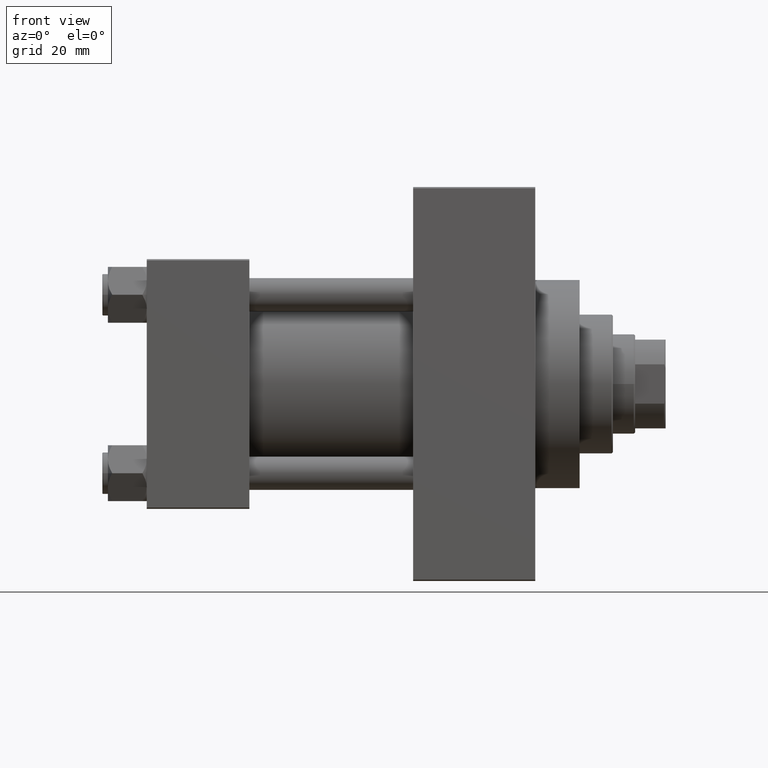
[diagram: clean part render]
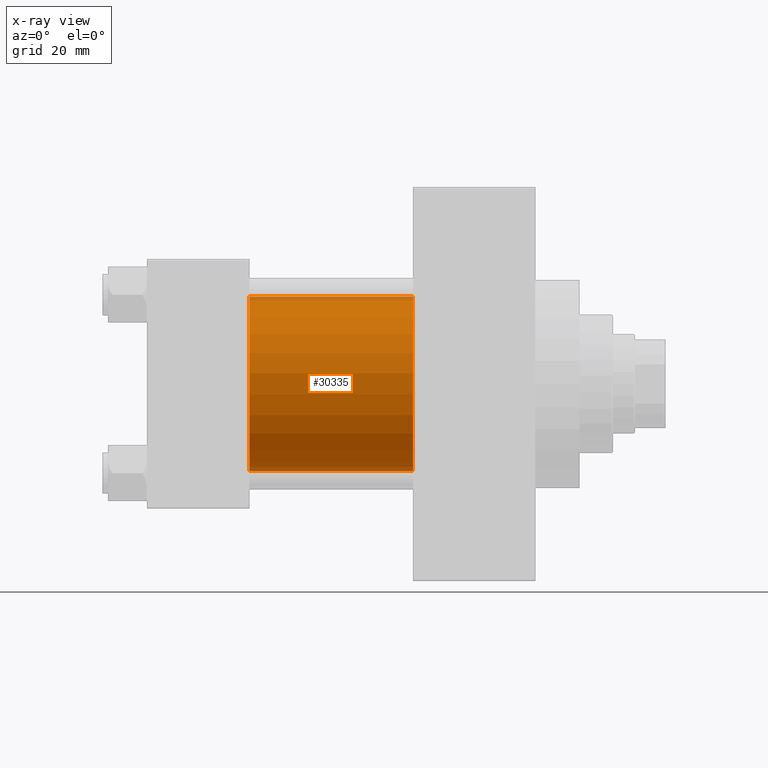
[diagram: x-ray — body ghosted, one internal face saturated and labeled with its STEP entity id]
A machine part, front view, then the same camera in x-ray: the body is ghosted and one INTERNAL B-rep face — a face not visible from any outside direction — is saturated and labeled: STEP entity #30335.
In plain terms, the highlighted cylindrical surface (partial cylindrical patch) has radius 31.5 mm, axis along (-1, -0, -0).
Its self-contained STEP definition (entity closure, byte-faithful):
#2856 = DIRECTION ( 'NONE',  ( 1.000000000000000000, 0.000000000000000000, 0.000000000000000000 ) ) ;
#5678 = LINE ( 'NONE', #20268, #20385 ) ;
#8130 = AXIS2_PLACEMENT_3D ( 'NONE', #43161, #32647, #21203 ) ;
#8546 = CARTESIAN_POINT ( 'NONE',  ( 96.00000000000000000, -2.602085213965210642E-15, 31.50000000000000000 ) ) ;
#9176 = CARTESIAN_POINT ( 'NONE',  ( 37.00000000000000000, 1.255552203348951850E-15, -31.50000000000000000 ) ) ;
#9942 = CYLINDRICAL_SURFACE ( 'NONE', #44889, 31.50000000000000000 ) ;
#11457 = CARTESIAN_POINT ( 'NONE',  ( 37.00000000000000000, -2.602085213965210642E-15, 31.50000000000000000 ) ) ;
#11812 = EDGE_CURVE ( 'NONE', #27016, #34896, #23056, .T. ) ;
#12058 = CARTESIAN_POINT ( 'NONE',  ( 96.00000000000000000, -2.602085213965210642E-15, 31.50000000000000000 ) ) ;
#13419 = CIRCLE ( 'NONE', #46215, 31.50000000000000000 ) ;
#13556 = DIRECTION ( 'NONE',  ( -1.000000000000000000, -0.000000000000000000, -0.000000000000000000 ) ) ;
#14512 = ORIENTED_EDGE ( 'NONE', *, *, #21348, .T. ) ;
#15038 = VERTEX_POINT ( 'NONE', #31426 ) ;
#16636 = EDGE_CURVE ( 'NONE', #34896, #25592, #13419, .T. ) ;
#17358 = DIRECTION ( 'NONE',  ( 0.000000000000000000, 0.000000000000000000, 1.000000000000000000 ) ) ;
#18017 = EDGE_CURVE ( 'NONE', #15038, #25592, #5678, .T. ) ;
#20268 = CARTESIAN_POINT ( 'NONE',  ( 96.00000000000000000, 1.255552203348951850E-15, -31.50000000000000000 ) ) ;
#20385 = VECTOR ( 'NONE', #13556, 1000.000000000000000 ) ;
#20548 = CARTESIAN_POINT ( 'NONE',  ( 37.00000000000000000, -2.602085213965210642E-15, 0.000000000000000000 ) ) ;
#20946 = CARTESIAN_POINT ( 'NONE',  ( 96.00000000000000000, -2.602085213965210642E-15, 0.000000000000000000 ) ) ;
#21203 = DIRECTION ( 'NONE',  ( 0.000000000000000000, 0.000000000000000000, -1.000000000000000000 ) ) ;
#21348 = EDGE_CURVE ( 'NONE', #27016, #15038, #22635, .T. ) ;
#21412 = DIRECTION ( 'NONE',  ( -1.000000000000000000, -0.000000000000000000, -0.000000000000000000 ) ) ;
#22635 = CIRCLE ( 'NONE', #8130, 31.50000000000000000 ) ;
#23056 = LINE ( 'NONE', #12058, #25494 ) ;
#23216 = EDGE_LOOP ( 'NONE', ( #14512, #41236, #25926, #23307 ) ) ;
#23307 = ORIENTED_EDGE ( 'NONE', *, *, #11812, .F. ) ;
#25494 = VECTOR ( 'NONE', #37615, 1000.000000000000000 ) ;
#25592 = VERTEX_POINT ( 'NONE', #9176 ) ;
#25926 = ORIENTED_EDGE ( 'NONE', *, *, #16636, .F. ) ;
#27016 = VERTEX_POINT ( 'NONE', #8546 ) ;
#28172 = DIRECTION ( 'NONE',  ( 0.000000000000000000, 0.000000000000000000, -1.000000000000000000 ) ) ;
#30335 = ADVANCED_FACE ( 'NONE', ( #46249 ), #9942, .F. ) ;
#31426 = CARTESIAN_POINT ( 'NONE',  ( 96.00000000000000000, 1.255552203348951850E-15, -31.50000000000000000 ) ) ;
#32647 = DIRECTION ( 'NONE',  ( 1.000000000000000000, 0.000000000000000000, 0.000000000000000000 ) ) ;
#34896 = VERTEX_POINT ( 'NONE', #11457 ) ;
#37615 = DIRECTION ( 'NONE',  ( -1.000000000000000000, -0.000000000000000000, -0.000000000000000000 ) ) ;
#41236 = ORIENTED_EDGE ( 'NONE', *, *, #18017, .T. ) ;
#43161 = CARTESIAN_POINT ( 'NONE',  ( 96.00000000000000000, -2.602085213965210642E-15, 0.000000000000000000 ) ) ;
#44889 = AXIS2_PLACEMENT_3D ( 'NONE', #20946, #21412, #17358 ) ;
#46215 = AXIS2_PLACEMENT_3D ( 'NONE', #20548, #2856, #28172 ) ;
#46249 = FACE_OUTER_BOUND ( 'NONE', #23216, .T. ) ;